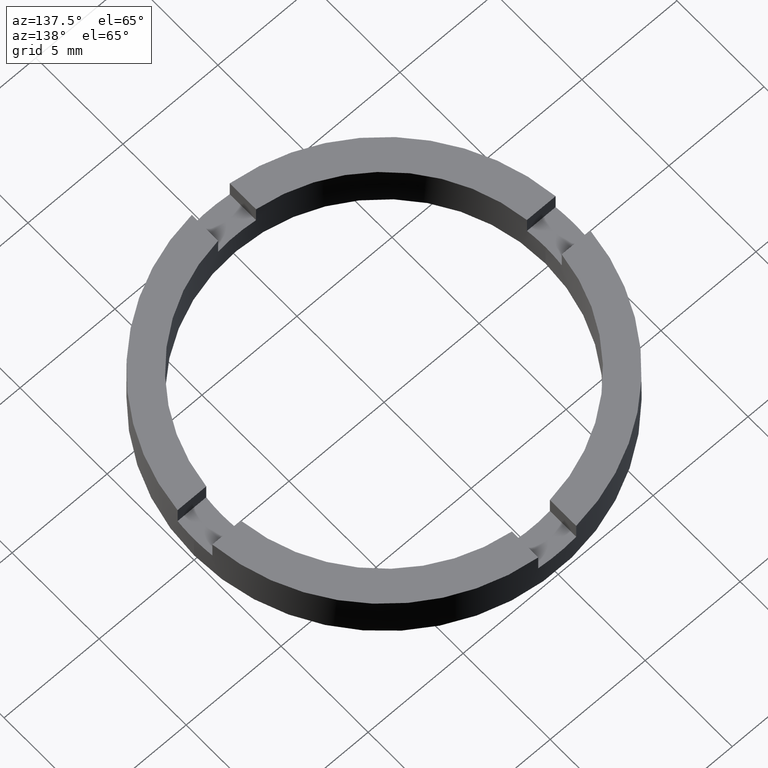
[diagram: clean part render]
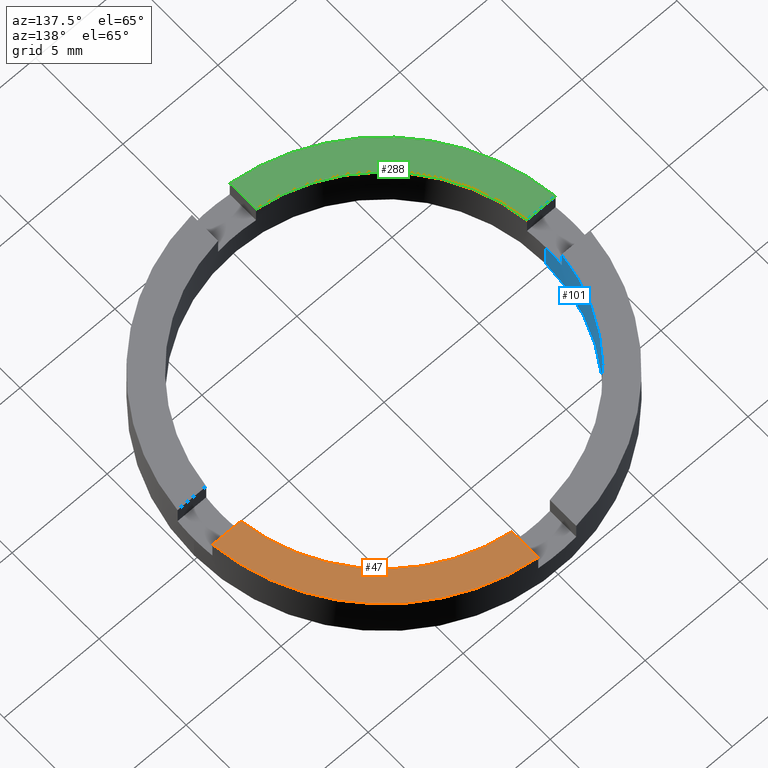
[diagram: same view with three faces highlighted in distinct colors, each labeled with its STEP entity id]
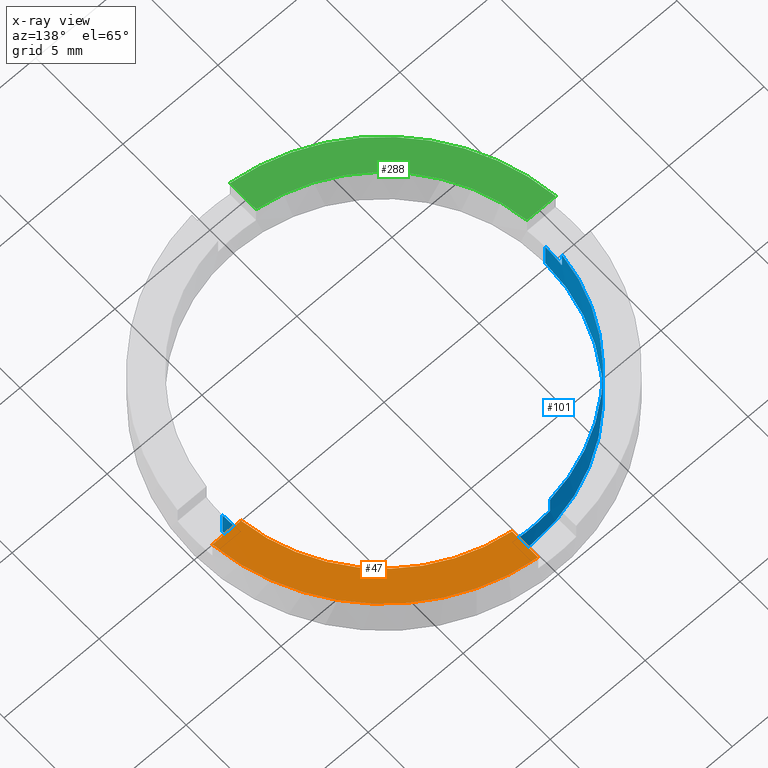
[diagram: x-ray of the same camera — body ghosted, the three highlighted faces saturated]
A machine part, auxiliary view with three faces highlighted in distinct colors.
The next image is the same camera in x-ray (body ghosted, the three faces saturated) — at least one of them is partly hidden behind the body in this view.
Their STEP definitions:

[orange] entity #47 — the highlighted planar face has unit normal (0, 0, 1).
#3 = LINE ( 'NONE', #426, #544 ) ;
#34 = CARTESIAN_POINT ( 'NONE',  ( 0.000000000000000000, 0.000000000000000000, 2.500000000000000000 ) ) ;
#47 = ADVANCED_FACE ( 'NONE', ( #95 ), #533, .T. ) ;
#74 = VECTOR ( 'NONE', #294, 1000.000000000000000 ) ;
#95 = FACE_OUTER_BOUND ( 'NONE', #611, .T. ) ;
#125 = DIRECTION ( 'NONE',  ( 0.000000000000000000, 1.000000000000000000, -0.000000000000000000 ) ) ;
#153 = EDGE_CURVE ( 'NONE', #159, #767, #585, .T. ) ;
#159 = VERTEX_POINT ( 'NONE', #675 ) ;
#204 = CARTESIAN_POINT ( 'NONE',  ( 0.000000000000000000, 0.000000000000000000, 2.500000000000000000 ) ) ;
#258 = DIRECTION ( 'NONE',  ( 0.000000000000000000, 0.000000000000000000, 1.000000000000000000 ) ) ;
#260 = DIRECTION ( 'NONE',  ( 1.000000000000000000, 0.000000000000000000, 0.000000000000000000 ) ) ;
#271 = AXIS2_PLACEMENT_3D ( 'NONE', #204, #443, #525 ) ;
#283 = CIRCLE ( 'NONE', #450, 8.500000000000000000 ) ;
#294 = DIRECTION ( 'NONE',  ( 1.000000000000000000, -3.751339516799845342E-15, 0.000000000000000000 ) ) ;
#298 = CIRCLE ( 'NONE', #617, 10.00000000000000000 ) ;
#333 = DIRECTION ( 'NONE',  ( 0.000000000000000000, 0.000000000000000000, 1.000000000000000000 ) ) ;
#402 = CARTESIAN_POINT ( 'NONE',  ( 1.000000000000001332, 9.949874371066199430, 2.500000000000000000 ) ) ;
#426 = CARTESIAN_POINT ( 'NONE',  ( 1.000000000000001332, 0.000000000000000000, 2.500000000000000000 ) ) ;
#429 = EDGE_CURVE ( 'NONE', #672, #692, #3, .T. ) ;
#443 = DIRECTION ( 'NONE',  ( 0.000000000000000000, 0.000000000000000000, 1.000000000000000000 ) ) ;
#450 = AXIS2_PLACEMENT_3D ( 'NONE', #34, #258, #260 ) ;
#479 = CARTESIAN_POINT ( 'NONE',  ( 3.751339516799841397E-15, 0.9999999999999988898, 2.500000000000000000 ) ) ;
#487 = ORIENTED_EDGE ( 'NONE', *, *, #756, .T. ) ;
#488 = CARTESIAN_POINT ( 'NONE',  ( 0.000000000000000000, 0.000000000000000000, 2.500000000000000000 ) ) ;
#496 = DIRECTION ( 'NONE',  ( 1.000000000000000000, 0.000000000000000000, 0.000000000000000000 ) ) ;
#525 = DIRECTION ( 'NONE',  ( 1.000000000000000000, 0.000000000000000000, -0.000000000000000000 ) ) ;
#533 = PLANE ( 'NONE',  #271 ) ;
#544 = VECTOR ( 'NONE', #125, 1000.000000000000000 ) ;
#566 = CARTESIAN_POINT ( 'NONE',  ( 9.949874371066202983, 0.9999999999999615863, 2.500000000000000000 ) ) ;
#585 = LINE ( 'NONE', #479, #74 ) ;
#611 = EDGE_LOOP ( 'NONE', ( #712, #664, #700, #487 ) ) ;
#617 = AXIS2_PLACEMENT_3D ( 'NONE', #488, #333, #496 ) ;
#664 = ORIENTED_EDGE ( 'NONE', *, *, #716, .F. ) ;
#672 = VERTEX_POINT ( 'NONE', #718 ) ;
#675 = CARTESIAN_POINT ( 'NONE',  ( 8.440971508067070417, 0.9999999999999672484, 2.500000000000000000 ) ) ;
#692 = VERTEX_POINT ( 'NONE', #402 ) ;
#700 = ORIENTED_EDGE ( 'NONE', *, *, #153, .T. ) ;
#712 = ORIENTED_EDGE ( 'NONE', *, *, #429, .F. ) ;
#716 = EDGE_CURVE ( 'NONE', #159, #672, #283, .T. ) ;
#718 = CARTESIAN_POINT ( 'NONE',  ( 1.000000000000001332, 8.440971508067066864, 2.500000000000000000 ) ) ;
#756 = EDGE_CURVE ( 'NONE', #767, #692, #298, .T. ) ;
#767 = VERTEX_POINT ( 'NONE', #566 ) ;

[blue] entity #101 — the highlighted cylindrical surface (partial cylindrical patch) has radius 8.5 mm, axis along (-0, -0, -1).
#2 = DIRECTION ( 'NONE',  ( -0.000000000000000000, -0.000000000000000000, -1.000000000000000000 ) ) ;
#6 = CARTESIAN_POINT ( 'NONE',  ( 8.440971508067070417, 0.9999999999999672484, 1.500000000000000000 ) ) ;
#16 = CARTESIAN_POINT ( 'NONE',  ( -8.500000000000000000, 0.000000000000000000, 0.000000000000000000 ) ) ;
#27 = LINE ( 'NONE', #733, #519 ) ;
#29 = CIRCLE ( 'NONE', #242, 8.500000000000000000 ) ;
#31 = DIRECTION ( 'NONE',  ( 1.000000000000000000, 0.000000000000000000, 0.000000000000000000 ) ) ;
#34 = CARTESIAN_POINT ( 'NONE',  ( 0.000000000000000000, 0.000000000000000000, 2.500000000000000000 ) ) ;
#37 = CIRCLE ( 'NONE', #759, 8.500000000000000000 ) ;
#41 = EDGE_CURVE ( 'NONE', #380, #243, #94, .T. ) ;
#44 = CARTESIAN_POINT ( 'NONE',  ( 0.000000000000000000, 0.000000000000000000, 2.500000000000000000 ) ) ;
#75 = CARTESIAN_POINT ( 'NONE',  ( 0.000000000000000000, 0.000000000000000000, 2.500000000000000000 ) ) ;
#90 = ORIENTED_EDGE ( 'NONE', *, *, #306, .F. ) ;
#94 = LINE ( 'NONE', #315, #590 ) ;
#96 = DIRECTION ( 'NONE',  ( -1.000000000000000000, 0.000000000000000000, 0.000000000000000000 ) ) ;
#101 = ADVANCED_FACE ( 'NONE', ( #345 ), #579, .F. ) ;
#104 = LINE ( 'NONE', #737, #620 ) ;
#106 = VECTOR ( 'NONE', #2, 1000.000000000000000 ) ;
#115 = DIRECTION ( 'NONE',  ( 1.000000000000000000, 0.000000000000000000, 0.000000000000000000 ) ) ;
#118 = DIRECTION ( 'NONE',  ( 0.000000000000000000, -0.000000000000000000, -1.000000000000000000 ) ) ;
#119 = DIRECTION ( 'NONE',  ( 1.000000000000000000, 0.000000000000000000, 0.000000000000000000 ) ) ;
#126 = ORIENTED_EDGE ( 'NONE', *, *, #259, .F. ) ;
#131 = EDGE_CURVE ( 'NONE', #406, #159, #325, .T. ) ;
#144 = DIRECTION ( 'NONE',  ( -0.000000000000000000, -0.000000000000000000, -1.000000000000000000 ) ) ;
#147 = ORIENTED_EDGE ( 'NONE', *, *, #772, .F. ) ;
#149 = ORIENTED_EDGE ( 'NONE', *, *, #180, .T. ) ;
#151 = ORIENTED_EDGE ( 'NONE', *, *, #766, .F. ) ;
#159 = VERTEX_POINT ( 'NONE', #675 ) ;
#160 = ORIENTED_EDGE ( 'NONE', *, *, #572, .T. ) ;
#165 = CARTESIAN_POINT ( 'NONE',  ( 0.000000000000000000, 0.000000000000000000, 1.500000000000000000 ) ) ;
#175 = VERTEX_POINT ( 'NONE', #527 ) ;
#180 = EDGE_CURVE ( 'NONE', #243, #390, #356, .T. ) ;
#184 = EDGE_LOOP ( 'NONE', ( #126, #151, #427, #655, #696, #408, #236, #149, #603, #90, #160, #147 ) ) ;
#222 = CARTESIAN_POINT ( 'NONE',  ( 0.000000000000000000, 0.000000000000000000, 1.500000000000000000 ) ) ;
#234 = DIRECTION ( 'NONE',  ( 0.000000000000000000, 0.000000000000000000, 1.000000000000000000 ) ) ;
#236 = ORIENTED_EDGE ( 'NONE', *, *, #41, .T. ) ;
#240 = DIRECTION ( 'NONE',  ( -0.000000000000000000, -0.000000000000000000, 1.000000000000000000 ) ) ;
#242 = AXIS2_PLACEMENT_3D ( 'NONE', #222, #330, #580 ) ;
#243 = VERTEX_POINT ( 'NONE', #252 ) ;
#247 = EDGE_CURVE ( 'NONE', #175, #672, #104, .T. ) ;
#252 = CARTESIAN_POINT ( 'NONE',  ( -0.9999999999999986677, 8.440971508067066864, 2.500000000000000000 ) ) ;
#258 = DIRECTION ( 'NONE',  ( 0.000000000000000000, 0.000000000000000000, 1.000000000000000000 ) ) ;
#259 = EDGE_CURVE ( 'NONE', #678, #581, #361, .T. ) ;
#260 = DIRECTION ( 'NONE',  ( 1.000000000000000000, 0.000000000000000000, 0.000000000000000000 ) ) ;
#276 = CARTESIAN_POINT ( 'NONE',  ( -8.500000000000000000, 0.000000000000000000, 2.500000000000000000 ) ) ;
#283 = CIRCLE ( 'NONE', #450, 8.500000000000000000 ) ;
#295 = VECTOR ( 'NONE', #349, 1000.000000000000000 ) ;
#306 = EDGE_CURVE ( 'NONE', #329, #403, #367, .T. ) ;
#308 = AXIS2_PLACEMENT_3D ( 'NONE', #648, #118, #31 ) ;
#309 = CARTESIAN_POINT ( 'NONE',  ( 8.500000000000000000, 1.040949779275250140E-15, 2.500000000000000000 ) ) ;
#315 = CARTESIAN_POINT ( 'NONE',  ( -0.9999999999999986677, 8.440971508067066864, 1.500000000000000000 ) ) ;
#325 = LINE ( 'NONE', #6, #598 ) ;
#326 = DIRECTION ( 'NONE',  ( 0.000000000000000000, -0.000000000000000000, -1.000000000000000000 ) ) ;
#329 = VERTEX_POINT ( 'NONE', #564 ) ;
#330 = DIRECTION ( 'NONE',  ( 0.000000000000000000, -0.000000000000000000, -1.000000000000000000 ) ) ;
#345 = FACE_OUTER_BOUND ( 'NONE', #184, .T. ) ;
#349 = DIRECTION ( 'NONE',  ( -0.000000000000000000, -0.000000000000000000, -1.000000000000000000 ) ) ;
#356 = CIRCLE ( 'NONE', #749, 8.500000000000000000 ) ;
#361 = LINE ( 'NONE', #309, #106 ) ;
#367 = CIRCLE ( 'NONE', #308, 8.500000000000000000 ) ;
#372 = CARTESIAN_POINT ( 'NONE',  ( -8.440971508067063311, 1.000000000000030642, 1.500000000000000000 ) ) ;
#380 = VERTEX_POINT ( 'NONE', #631 ) ;
#381 = EDGE_CURVE ( 'NONE', #380, #175, #29, .T. ) ;
#389 = DIRECTION ( 'NONE',  ( 1.000000000000000000, -1.509903313490213211E-14, 0.000000000000000000 ) ) ;
#390 = VERTEX_POINT ( 'NONE', #446 ) ;
#403 = VERTEX_POINT ( 'NONE', #372 ) ;
#406 = VERTEX_POINT ( 'NONE', #736 ) ;
#408 = ORIENTED_EDGE ( 'NONE', *, *, #381, .F. ) ;
#427 = ORIENTED_EDGE ( 'NONE', *, *, #131, .T. ) ;
#431 = DIRECTION ( 'NONE',  ( 0.000000000000000000, 0.000000000000000000, 1.000000000000000000 ) ) ;
#446 = CARTESIAN_POINT ( 'NONE',  ( -8.440971508067063311, 1.000000000000030642, 2.500000000000000000 ) ) ;
#450 = AXIS2_PLACEMENT_3D ( 'NONE', #34, #258, #260 ) ;
#451 = DIRECTION ( 'NONE',  ( -0.000000000000000000, -0.000000000000000000, 1.000000000000000000 ) ) ;
#481 = AXIS2_PLACEMENT_3D ( 'NONE', #75, #144, #96 ) ;
#495 = AXIS2_PLACEMENT_3D ( 'NONE', #659, #234, #115 ) ;
#501 = DIRECTION ( 'NONE',  ( -0.000000000000000000, -0.000000000000000000, 1.000000000000000000 ) ) ;
#519 = VECTOR ( 'NONE', #501, 1000.000000000000000 ) ;
#527 = CARTESIAN_POINT ( 'NONE',  ( 1.000000000000001332, 8.440971508067066864, 1.500000000000000000 ) ) ;
#537 = LINE ( 'NONE', #276, #295 ) ;
#539 = EDGE_CURVE ( 'NONE', #403, #390, #27, .T. ) ;
#557 = CIRCLE ( 'NONE', #495, 8.500000000000000000 ) ;
#561 = CARTESIAN_POINT ( 'NONE',  ( 8.500000000000000000, 1.040949779275250140E-15, 1.500000000000000000 ) ) ;
#564 = CARTESIAN_POINT ( 'NONE',  ( -8.500000000000000000, 0.000000000000000000, 1.500000000000000000 ) ) ;
#572 = EDGE_CURVE ( 'NONE', #329, #649, #537, .T. ) ;
#579 = CYLINDRICAL_SURFACE ( 'NONE', #481, 8.500000000000000000 ) ;
#580 = DIRECTION ( 'NONE',  ( 1.000000000000000000, 4.440892098500626162E-15, 0.000000000000000000 ) ) ;
#581 = VERTEX_POINT ( 'NONE', #662 ) ;
#590 = VECTOR ( 'NONE', #451, 1000.000000000000000 ) ;
#598 = VECTOR ( 'NONE', #240, 1000.000000000000000 ) ;
#603 = ORIENTED_EDGE ( 'NONE', *, *, #539, .F. ) ;
#620 = VECTOR ( 'NONE', #781, 1000.000000000000000 ) ;
#631 = CARTESIAN_POINT ( 'NONE',  ( -0.9999999999999986677, 8.440971508067066864, 1.500000000000000000 ) ) ;
#648 = CARTESIAN_POINT ( 'NONE',  ( 0.000000000000000000, 0.000000000000000000, 1.500000000000000000 ) ) ;
#649 = VERTEX_POINT ( 'NONE', #16 ) ;
#655 = ORIENTED_EDGE ( 'NONE', *, *, #716, .T. ) ;
#659 = CARTESIAN_POINT ( 'NONE',  ( 0.000000000000000000, 0.000000000000000000, 0.000000000000000000 ) ) ;
#662 = CARTESIAN_POINT ( 'NONE',  ( 8.500000000000000000, 1.040949779275250140E-15, 0.000000000000000000 ) ) ;
#672 = VERTEX_POINT ( 'NONE', #718 ) ;
#675 = CARTESIAN_POINT ( 'NONE',  ( 8.440971508067070417, 0.9999999999999672484, 2.500000000000000000 ) ) ;
#678 = VERTEX_POINT ( 'NONE', #561 ) ;
#696 = ORIENTED_EDGE ( 'NONE', *, *, #247, .F. ) ;
#716 = EDGE_CURVE ( 'NONE', #159, #672, #283, .T. ) ;
#718 = CARTESIAN_POINT ( 'NONE',  ( 1.000000000000001332, 8.440971508067066864, 2.500000000000000000 ) ) ;
#733 = CARTESIAN_POINT ( 'NONE',  ( -8.440971508067063311, 1.000000000000030642, 1.500000000000000000 ) ) ;
#736 = CARTESIAN_POINT ( 'NONE',  ( 8.440971508067070417, 0.9999999999999672484, 1.500000000000000000 ) ) ;
#737 = CARTESIAN_POINT ( 'NONE',  ( 1.000000000000001332, 8.440971508067066864, 1.500000000000000000 ) ) ;
#749 = AXIS2_PLACEMENT_3D ( 'NONE', #44, #431, #119 ) ;
#759 = AXIS2_PLACEMENT_3D ( 'NONE', #165, #326, #389 ) ;
#766 = EDGE_CURVE ( 'NONE', #406, #678, #37, .T. ) ;
#772 = EDGE_CURVE ( 'NONE', #581, #649, #557, .T. ) ;
#781 = DIRECTION ( 'NONE',  ( -0.000000000000000000, -0.000000000000000000, 1.000000000000000000 ) ) ;

[green] entity #288 — the highlighted planar face has unit normal (0, 0, 1).
#8 = DIRECTION ( 'NONE',  ( 0.000000000000000000, 0.000000000000000000, 1.000000000000000000 ) ) ;
#9 = CIRCLE ( 'NONE', #425, 10.00000000000000000 ) ;
#57 = EDGE_CURVE ( 'NONE', #217, #641, #584, .T. ) ;
#63 = VECTOR ( 'NONE', #735, 1000.000000000000000 ) ;
#105 = AXIS2_PLACEMENT_3D ( 'NONE', #629, #8, #215 ) ;
#108 = FACE_OUTER_BOUND ( 'NONE', #762, .T. ) ;
#132 = DIRECTION ( 'NONE',  ( 1.000000000000000000, 0.000000000000000000, 0.000000000000000000 ) ) ;
#142 = ORIENTED_EDGE ( 'NONE', *, *, #456, .F. ) ;
#205 = CARTESIAN_POINT ( 'NONE',  ( 0.000000000000000000, 0.000000000000000000, 2.500000000000000000 ) ) ;
#208 = CARTESIAN_POINT ( 'NONE',  ( -3.729655473350139197E-15, -1.000000000000001110, 2.500000000000000000 ) ) ;
#215 = DIRECTION ( 'NONE',  ( 1.000000000000000000, 0.000000000000000000, -0.000000000000000000 ) ) ;
#217 = VERTEX_POINT ( 'NONE', #469 ) ;
#244 = EDGE_CURVE ( 'NONE', #694, #768, #344, .T. ) ;
#266 = CARTESIAN_POINT ( 'NONE',  ( -0.9999999999999986677, -9.949874371066199430, 2.500000000000000000 ) ) ;
#285 = CIRCLE ( 'NONE', #498, 8.500000000000000000 ) ;
#288 = ADVANCED_FACE ( 'NONE', ( #108 ), #554, .T. ) ;
#313 = CARTESIAN_POINT ( 'NONE',  ( -0.9999999999999986677, 0.000000000000000000, 2.500000000000000000 ) ) ;
#344 = LINE ( 'NONE', #313, #600 ) ;
#387 = ORIENTED_EDGE ( 'NONE', *, *, #57, .F. ) ;
#394 = EDGE_CURVE ( 'NONE', #217, #694, #9, .T. ) ;
#401 = ORIENTED_EDGE ( 'NONE', *, *, #394, .T. ) ;
#425 = AXIS2_PLACEMENT_3D ( 'NONE', #205, #688, #610 ) ;
#456 = EDGE_CURVE ( 'NONE', #641, #768, #285, .T. ) ;
#469 = CARTESIAN_POINT ( 'NONE',  ( -9.949874371066202983, -0.9999999999999640288, 2.500000000000000000 ) ) ;
#498 = AXIS2_PLACEMENT_3D ( 'NONE', #720, #668, #132 ) ;
#554 = PLANE ( 'NONE',  #105 ) ;
#582 = CARTESIAN_POINT ( 'NONE',  ( -0.9999999999999986677, -8.440971508067066864, 2.500000000000000000 ) ) ;
#584 = LINE ( 'NONE', #208, #63 ) ;
#600 = VECTOR ( 'NONE', #612, 1000.000000000000000 ) ;
#610 = DIRECTION ( 'NONE',  ( 1.000000000000000000, 0.000000000000000000, 0.000000000000000000 ) ) ;
#612 = DIRECTION ( 'NONE',  ( 0.000000000000000000, 1.000000000000000000, -0.000000000000000000 ) ) ;
#629 = CARTESIAN_POINT ( 'NONE',  ( 0.000000000000000000, 0.000000000000000000, 2.500000000000000000 ) ) ;
#636 = CARTESIAN_POINT ( 'NONE',  ( -8.440971508067070417, -0.9999999999999696909, 2.500000000000000000 ) ) ;
#641 = VERTEX_POINT ( 'NONE', #636 ) ;
#668 = DIRECTION ( 'NONE',  ( 0.000000000000000000, 0.000000000000000000, 1.000000000000000000 ) ) ;
#688 = DIRECTION ( 'NONE',  ( 0.000000000000000000, 0.000000000000000000, 1.000000000000000000 ) ) ;
#694 = VERTEX_POINT ( 'NONE', #266 ) ;
#720 = CARTESIAN_POINT ( 'NONE',  ( 0.000000000000000000, 0.000000000000000000, 2.500000000000000000 ) ) ;
#728 = ORIENTED_EDGE ( 'NONE', *, *, #244, .T. ) ;
#735 = DIRECTION ( 'NONE',  ( 1.000000000000000000, -3.729655473350134464E-15, 0.000000000000000000 ) ) ;
#762 = EDGE_LOOP ( 'NONE', ( #387, #401, #728, #142 ) ) ;
#768 = VERTEX_POINT ( 'NONE', #582 ) ;